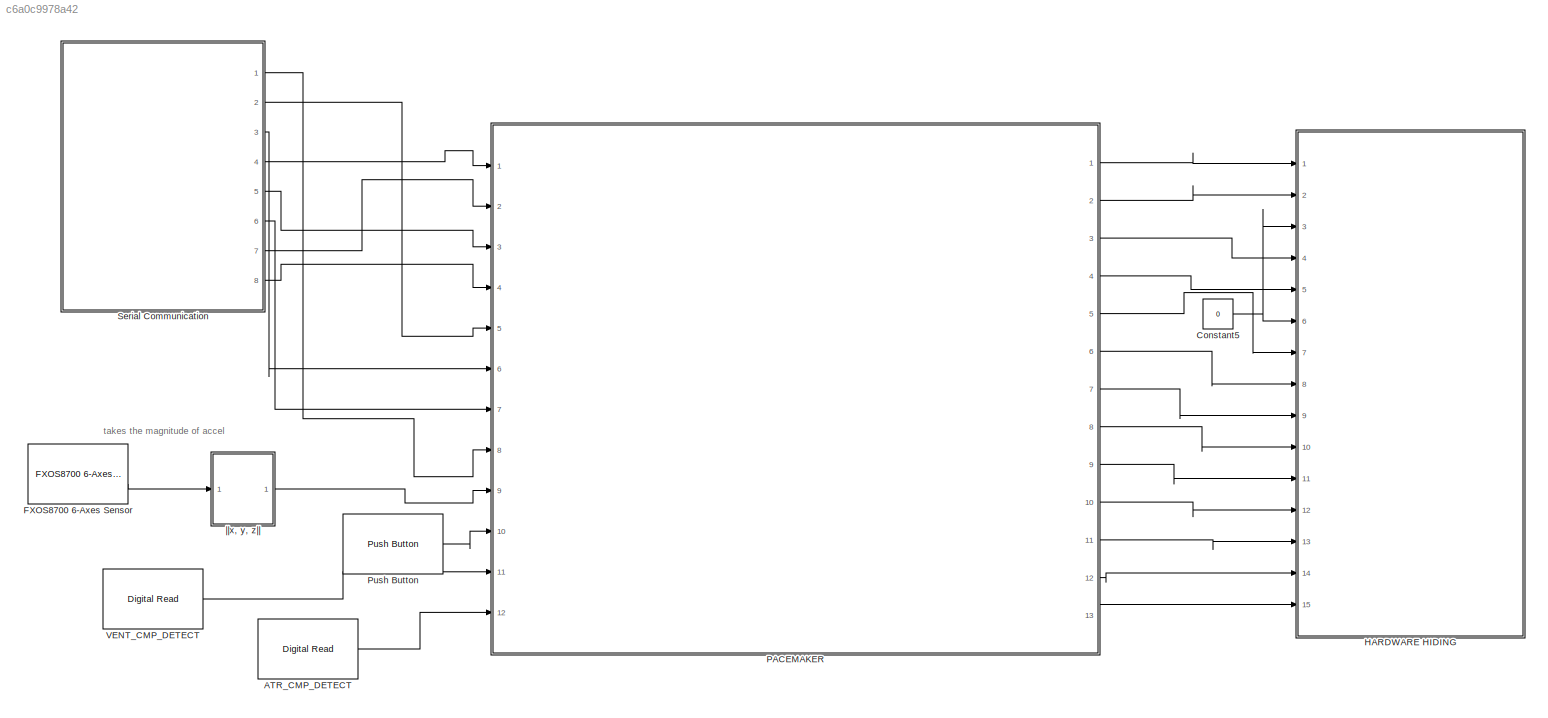
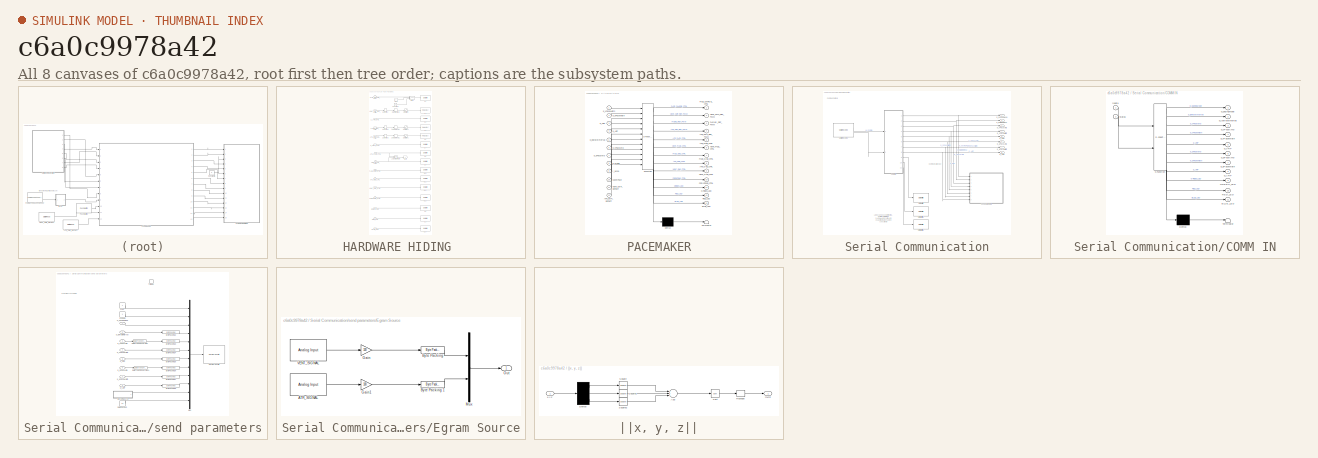
[diagram: thumbnail index - all 8 canvases of the model, root first then tree order]
MODEL slx_c6a0c9978a42
KIND model
CONFIG AbsTol = auto
CONFIG EnableMultiTasking = on
CONFIG FixedStep = 1e-3
CONFIG MaxStep = auto
CONFIG MinStep = auto
CONFIG RelTol = 1e-3
CONFIG SampleTimeConstraint = Unconstrained
CONFIG Solver = FixedStepAuto
CONFIG SolverName = FixedStepAuto
CONFIG StartTime = 0.0
CONFIG StopTime = 10.0
BLOCK [Reference] ATR_CMP_DETECT  REF=frdmk64flib/Digital Read
  Ports = [0, 1]
  SourceBlock = frdmk64flib/Digital Read
  SourceProductBaseCode = EC_FRDM_K64F
  SourceProductName = Simulink Coder Support Package for NXP FRDM-K64F Board
  SourceType = freedomk64f.DigitalRead
BLOCK [Constant] Constant5
  OutDataTypeStr = boolean
  Value = 0
BLOCK [Reference] FXOS8700 6-Axes Sensor  REF=frdmk64flib/FXOS8700 6-Axes Sensor
  Ports = [0, 2]
  SourceBlock = frdmk64flib/FXOS8700 6-Axes Sensor
  SourceProductBaseCode = EC_FRDM_K64F
  SourceProductName = Simulink Coder Support Package for NXP FRDM-K64F Board
  SourceType = freedomk64f.fxos8700
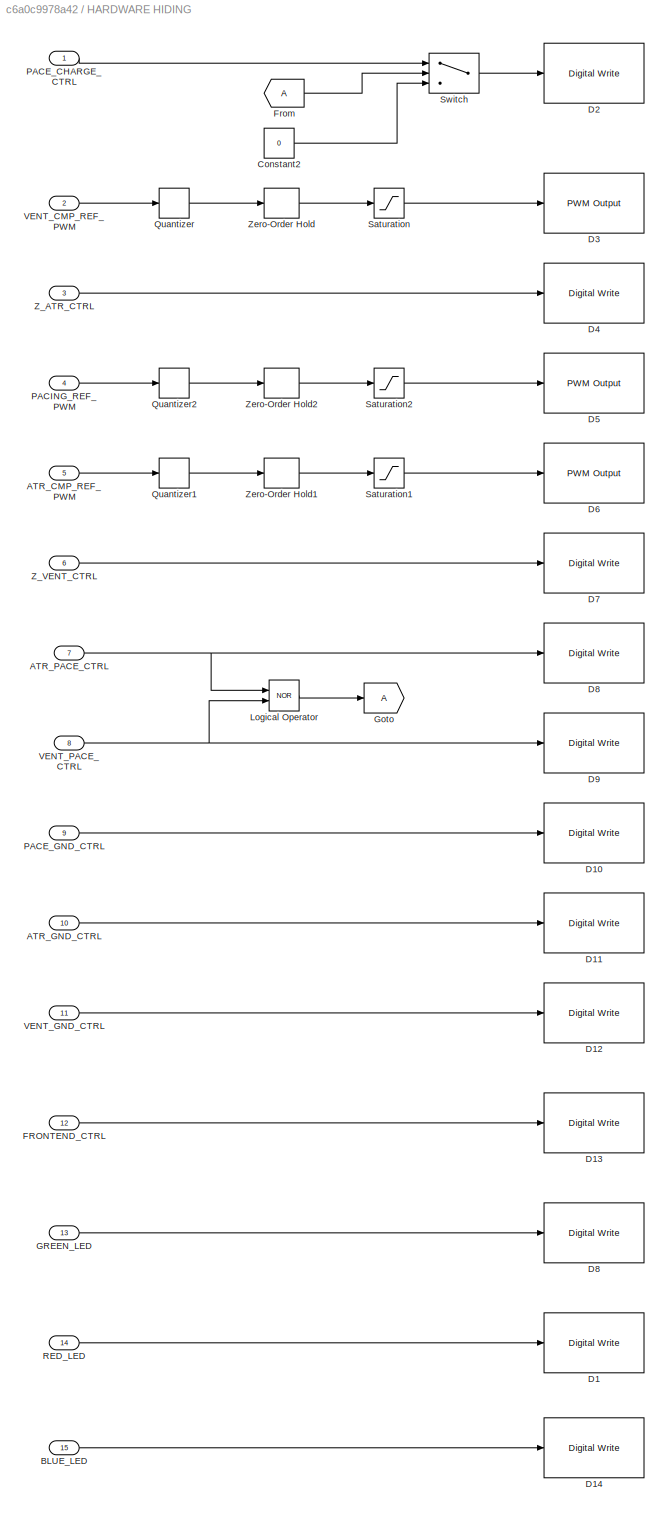
BLOCK [SubSystem] HARDWARE HIDING 
  Ports = [15]
  RequestExecContextInheritance = off
BLOCK [Inport] HARDWARE HIDING /ATR_CMP_REF_PWM
  IconDisplay = Port number
  OutDataTypeStr = double
  Port = 5
BLOCK [Inport] HARDWARE HIDING /ATR_GND_CTRL
  IconDisplay = Port number
  OutDataTypeStr = boolean
  Port = 10
BLOCK [Inport] HARDWARE HIDING /ATR_PACE_CTRL
  IconDisplay = Port number
  OutDataTypeStr = boolean
  Port = 7
BLOCK [Inport] HARDWARE HIDING /BLUE_LED
  IconDisplay = Port number
  OutDataTypeStr = boolean
  Port = 15
BLOCK [Constant] HARDWARE HIDING /Constant2
  OutDataTypeStr = boolean
  Value = 0
BLOCK [Reference] HARDWARE HIDING /D1  REF=frdmk64flib/Digital Write
  Ports = [1]
  SourceBlock = frdmk64flib/Digital Write
  SourceProductBaseCode = EC_FRDM_K64F
  SourceProductName = Simulink Coder Support Package for NXP FRDM-K64F Board
  SourceType = freedomk64f.DigitalWrite
BLOCK [Reference] HARDWARE HIDING /D10  REF=frdmk64flib/Digital Write
  Ports = [1]
  SourceBlock = frdmk64flib/Digital Write
  SourceProductBaseCode = EC_FRDM_K64F
  SourceProductName = Simulink Coder Support Package for NXP FRDM-K64F Board
  SourceType = freedomk64f.DigitalWrite
BLOCK [Reference] HARDWARE HIDING /D11  REF=frdmk64flib/Digital Write
  Ports = [1]
  SourceBlock = frdmk64flib/Digital Write
  SourceProductBaseCode = EC_FRDM_K64F
  SourceProductName = Simulink Coder Support Package for NXP FRDM-K64F Board
  SourceType = freedomk64f.DigitalWrite
BLOCK [Reference] HARDWARE HIDING /D12  REF=frdmk64flib/Digital Write
  Ports = [1]
  SourceBlock = frdmk64flib/Digital Write
  SourceProductBaseCode = EC_FRDM_K64F
  SourceProductName = Simulink Coder Support Package for NXP FRDM-K64F Board
  SourceType = freedomk64f.DigitalWrite
BLOCK [Reference] HARDWARE HIDING /D13  REF=frdmk64flib/Digital Write
  Ports = [1]
  SourceBlock = frdmk64flib/Digital Write
  SourceProductBaseCode = EC_FRDM_K64F
  SourceProductName = Simulink Coder Support Package for NXP FRDM-K64F Board
  SourceType = freedomk64f.DigitalWrite
BLOCK [Reference] HARDWARE HIDING /D14  REF=frdmk64flib/Digital Write
  Ports = [1]
  SourceBlock = frdmk64flib/Digital Write
  SourceProductBaseCode = EC_FRDM_K64F
  SourceProductName = Simulink Coder Support Package for NXP FRDM-K64F Board
  SourceType = freedomk64f.DigitalWrite
BLOCK [Reference] HARDWARE HIDING /D2  REF=frdmk64flib/Digital Write
  Ports = [1]
  SourceBlock = frdmk64flib/Digital Write
  SourceProductBaseCode = EC_FRDM_K64F
  SourceProductName = Simulink Coder Support Package for NXP FRDM-K64F Board
  SourceType = freedomk64f.DigitalWrite
BLOCK [Reference] HARDWARE HIDING /D3  REF=frdmk64flib/PWM Output
  Ports = [1]
  SourceBlock = frdmk64flib/PWM Output
  SourceProductBaseCode = EC_FRDM_K64F
  SourceProductName = Simulink Coder Support Package for NXP FRDM-K64F Board
  SourceType = freedomk64f.PWMOutput
BLOCK [Reference] HARDWARE HIDING /D4  REF=frdmk64flib/Digital Write
  Ports = [1]
  SourceBlock = frdmk64flib/Digital Write
  SourceProductBaseCode = EC_FRDM_K64F
  SourceProductName = Simulink Coder Support Package for NXP FRDM-K64F Board
  SourceType = freedomk64f.DigitalWrite
BLOCK [Reference] HARDWARE HIDING /D5  REF=frdmk64flib/PWM Output
  Ports = [1]
  SourceBlock = frdmk64flib/PWM Output
  SourceProductBaseCode = EC_FRDM_K64F
  SourceProductName = Simulink Coder Support Package for NXP FRDM-K64F Board
  SourceType = freedomk64f.PWMOutput
BLOCK [Reference] HARDWARE HIDING /D6  REF=frdmk64flib/PWM Output
  Ports = [1]
  SourceBlock = frdmk64flib/PWM Output
  SourceProductBaseCode = EC_FRDM_K64F
  SourceProductName = Simulink Coder Support Package for NXP FRDM-K64F Board
  SourceType = freedomk64f.PWMOutput
BLOCK [Reference] HARDWARE HIDING /D7  REF=frdmk64flib/Digital Write
  Ports = [1]
  SourceBlock = frdmk64flib/Digital Write
  SourceProductBaseCode = EC_FRDM_K64F
  SourceProductName = Simulink Coder Support Package for NXP FRDM-K64F Board
  SourceType = freedomk64f.DigitalWrite
BLOCK [Reference] HARDWARE HIDING /D8  REF=frdmk64flib/Digital Write
  Ports = [1]
  SourceBlock = frdmk64flib/Digital Write
  SourceProductBaseCode = EC_FRDM_K64F
  SourceProductName = Simulink Coder Support Package for NXP FRDM-K64F Board
  SourceType = freedomk64f.DigitalWrite
BLOCK [Reference] HARDWARE HIDING /D8   REF=frdmk64flib/Digital Write
  Ports = [1]
  SourceBlock = frdmk64flib/Digital Write
  SourceProductBaseCode = EC_FRDM_K64F
  SourceProductName = Simulink Coder Support Package for NXP FRDM-K64F Board
  SourceType = freedomk64f.DigitalWrite
BLOCK [Reference] HARDWARE HIDING /D9  REF=frdmk64flib/Digital Write
  Ports = [1]
  SourceBlock = frdmk64flib/Digital Write
  SourceProductBaseCode = EC_FRDM_K64F
  SourceProductName = Simulink Coder Support Package for NXP FRDM-K64F Board
  SourceType = freedomk64f.DigitalWrite
BLOCK [Inport] HARDWARE HIDING /FRONTEND_CTRL
  IconDisplay = Port number
  OutDataTypeStr = boolean
  Port = 12
BLOCK [From] HARDWARE HIDING /From
BLOCK [Inport] HARDWARE HIDING /GREEN_LED
  IconDisplay = Port number
  OutDataTypeStr = boolean
  Port = 13
BLOCK [Goto] HARDWARE HIDING /Goto
BLOCK [Logic] HARDWARE HIDING /Logical Operator
  AllPortsSameDT = off
  Operator = NOR
  OutDataTypeStr = boolean
  Ports = [2, 1]
BLOCK [Inport] HARDWARE HIDING /PACE_CHARGE_CTRL
  IconDisplay = Port number
  OutDataTypeStr = boolean
BLOCK [Inport] HARDWARE HIDING /PACE_GND_CTRL
  IconDisplay = Port number
  OutDataTypeStr = boolean
  Port = 9
BLOCK [Inport] HARDWARE HIDING /PACING_REF_PWM
  IconDisplay = Port number
  OutDataTypeStr = double
  Port = 4
BLOCK [Quantizer] HARDWARE HIDING /Quantizer
  QuantizationInterval = 0.01
BLOCK [Quantizer] HARDWARE HIDING /Quantizer1
  QuantizationInterval = 0.01
BLOCK [Quantizer] HARDWARE HIDING /Quantizer2
  QuantizationInterval = 0.01
BLOCK [Inport] HARDWARE HIDING /RED_LED
  IconDisplay = Port number
  OutDataTypeStr = boolean
  Port = 14
BLOCK [Saturate] HARDWARE HIDING /Saturation
  InputPortMap = u0
  LowerLimit = 0
  Ports = [1, 1]
  UpperLimit = 100
BLOCK [Saturate] HARDWARE HIDING /Saturation1
  InputPortMap = u0
  LowerLimit = 0
  Ports = [1, 1]
  UpperLimit = 100
BLOCK [Saturate] HARDWARE HIDING /Saturation2
  InputPortMap = u0
  LowerLimit = 0
  Ports = [1, 1]
  UpperLimit = 100
BLOCK [Switch] HARDWARE HIDING /Switch
  Criteria = u2 > Threshold
  InputSameDT = off
  SaturateOnIntegerOverflow = off
BLOCK [Inport] HARDWARE HIDING /VENT_CMP_REF_PWM
  IconDisplay = Port number
  OutDataTypeStr = double
  Port = 2
BLOCK [Inport] HARDWARE HIDING /VENT_GND_CTRL
  IconDisplay = Port number
  OutDataTypeStr = boolean
  Port = 11
BLOCK [Inport] HARDWARE HIDING /VENT_PACE_CTRL
  IconDisplay = Port number
  OutDataTypeStr = boolean
  Port = 8
BLOCK [Inport] HARDWARE HIDING /Z_ATR_CTRL
  IconDisplay = Port number
  OutDataTypeStr = boolean
  Port = 3
BLOCK [Inport] HARDWARE HIDING /Z_VENT_CTRL
  IconDisplay = Port number
  OutDataTypeStr = boolean
  Port = 6
BLOCK [ZeroOrderHold] HARDWARE HIDING /Zero-Order Hold
  SampleTime = 0.01
BLOCK [ZeroOrderHold] HARDWARE HIDING /Zero-Order Hold1
  SampleTime = 0.01
BLOCK [ZeroOrderHold] HARDWARE HIDING /Zero-Order Hold2
  SampleTime = 0.01
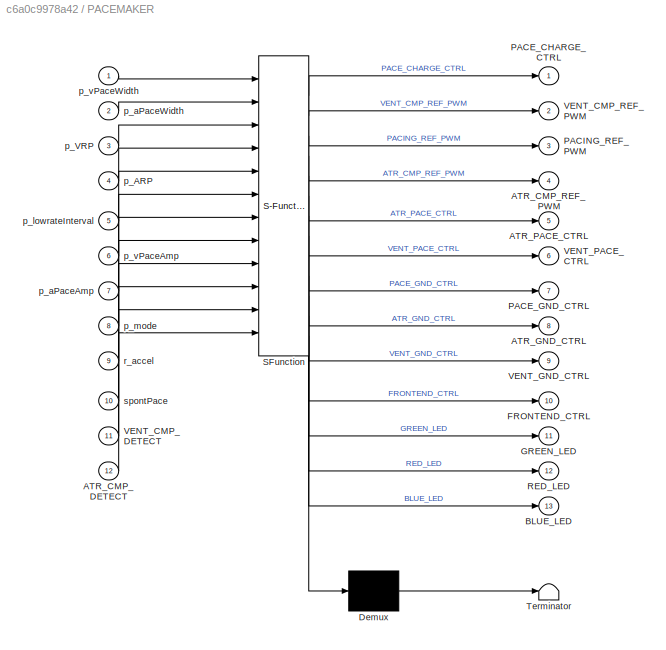
BLOCK [SubSystem] PACEMAKER
  ErrorFcn = Stateflow.Translate.translate
  PermitHierarchicalResolution = ExplicitOnly
  Ports = [12, 13]
  RequestExecContextInheritance = off
  SFBlockType = Chart
  TreatAsAtomicUnit = on
BLOCK [Demux] PACEMAKER/ Demux 
  Outputs = 1
  Ports = [1, 1]
BLOCK [S-Function] PACEMAKER/ SFunction 
  EnableBusSupport = on
  FunctionName = sf_sfun
  PortCounts = [12 14]
  Ports = [12, 14]
  SFcnIsStateOwnerBlock = off
  SFunctionDeploymentMode = off
  Tag = Stateflow S-Function part1_WORKS 3
BLOCK [Terminator] PACEMAKER/ Terminator 
BLOCK [Inport] PACEMAKER/ATR_CMP_DETECT
  IconDisplay = Port number
  Port = 12
BLOCK [Outport] PACEMAKER/ATR_CMP_REF_PWM
  IconDisplay = Port number
  Port = 4
BLOCK [Outport] PACEMAKER/ATR_GND_CTRL
  IconDisplay = Port number
  Port = 8
BLOCK [Outport] PACEMAKER/ATR_PACE_CTRL
  IconDisplay = Port number
  Port = 5
BLOCK [Outport] PACEMAKER/BLUE_LED
  IconDisplay = Port number
  Port = 13
BLOCK [Outport] PACEMAKER/FRONTEND_CTRL
  IconDisplay = Port number
  Port = 10
BLOCK [Outport] PACEMAKER/GREEN_LED
  IconDisplay = Port number
  Port = 11
BLOCK [Outport] PACEMAKER/PACE_CHARGE_CTRL
  IconDisplay = Port number
BLOCK [Outport] PACEMAKER/PACE_GND_CTRL
  IconDisplay = Port number
  Port = 7
BLOCK [Outport] PACEMAKER/PACING_REF_PWM
  IconDisplay = Port number
  Port = 3
BLOCK [Outport] PACEMAKER/RED_LED
  IconDisplay = Port number
  Port = 12
BLOCK [Inport] PACEMAKER/VENT_CMP_DETECT
  IconDisplay = Port number
  Port = 11
BLOCK [Outport] PACEMAKER/VENT_CMP_REF_PWM
  IconDisplay = Port number
  Port = 2
BLOCK [Outport] PACEMAKER/VENT_GND_CTRL
  IconDisplay = Port number
  Port = 9
BLOCK [Outport] PACEMAKER/VENT_PACE_CTRL
  IconDisplay = Port number
  Port = 6
BLOCK [Inport] PACEMAKER/p_ARP
  IconDisplay = Port number
  Port = 4
BLOCK [Inport] PACEMAKER/p_VRP
  IconDisplay = Port number
  Port = 3
BLOCK [Inport] PACEMAKER/p_aPaceAmp
  IconDisplay = Port number
  Port = 7
BLOCK [Inport] PACEMAKER/p_aPaceWidth
  IconDisplay = Port number
  Port = 2
BLOCK [Inport] PACEMAKER/p_lowrateInterval
  IconDisplay = Port number
  Port = 5
BLOCK [Inport] PACEMAKER/p_mode
  IconDisplay = Port number
  Port = 8
BLOCK [Inport] PACEMAKER/p_vPaceAmp
  IconDisplay = Port number
  Port = 6
BLOCK [Inport] PACEMAKER/p_vPaceWidth
  IconDisplay = Port number
BLOCK [Inport] PACEMAKER/r_accel
  IconDisplay = Port number
  Port = 9
BLOCK [Inport] PACEMAKER/spontPace
  IconDisplay = Port number
  Port = 10
BLOCK [Reference] Push Button  REF=frdmk64flib/Push Button
  Ports = [0, 1]
  SourceBlock = frdmk64flib/Push Button
  SourceProductBaseCode = EC_FRDM_K64F
  SourceProductName = Simulink Coder Support Package for NXP FRDM-K64F Board
  SourceType = freedomk64f.PushButton
BLOCK [SubSystem] Serial Communication
  Ports = [0, 8]
  RequestExecContextInheritance = off
BLOCK [SubSystem] Serial Communication/COMM IN
  ErrorFcn = Stateflow.Translate.translate
  PermitHierarchicalResolution = ExplicitOnly
  Ports = [2, 11]
  RequestExecContextInheritance = off
  SFBlockType = Chart
  TreatAsAtomicUnit = on
BLOCK [Demux] Serial Communication/COMM IN/ Demux 
  Outputs = 1
  Ports = [1, 1]
BLOCK [S-Function] Serial Communication/COMM IN/ SFunction 
  EnableBusSupport = on
  FunctionName = sf_sfun
  PortCounts = [2 12]
  Ports = [2, 12]
  SFcnIsStateOwnerBlock = off
  SFunctionDeploymentMode = off
  Tag = Stateflow S-Function part1_WORKS 1
BLOCK [Terminator] Serial Communication/COMM IN/ Terminator 
BLOCK [Outport] Serial Communication/COMM IN/BLUE_LED
  IconDisplay = Port number
  Port = 11
BLOCK [Outport] Serial Communication/COMM IN/GREEN_LED
  IconDisplay = Port number
  Port = 9
BLOCK [Outport] Serial Communication/COMM IN/RED_LED
  IconDisplay = Port number
  Port = 10
BLOCK [Outport] Serial Communication/COMM IN/p_ARP
  IconDisplay = Port number
  Port = 8
BLOCK [Outport] Serial Communication/COMM IN/p_VRP
  IconDisplay = Port number
  Port = 5
BLOCK [Outport] Serial Communication/COMM IN/p_aPaceAmp
  IconDisplay = Port number
  Port = 6
BLOCK [Outport] Serial Communication/COMM IN/p_aPaceWidth
  IconDisplay = Port number
  Port = 7
BLOCK [Outport] Serial Communication/COMM IN/p_lowrateInterval
  IconDisplay = Port number
  Port = 2
BLOCK [Outport] Serial Communication/COMM IN/p_pacingMode
  IconDisplay = Port number
BLOCK [Outport] Serial Communication/COMM IN/p_vPaceAmp
  IconDisplay = Port number
  Port = 3
BLOCK [Outport] Serial Communication/COMM IN/p_vPaceWidth
  IconDisplay = Port number
  Port = 4
BLOCK [Inport] Serial Communication/COMM IN/rxdata
  IconDisplay = Port number
BLOCK [Inport] Serial Communication/COMM IN/status
  IconDisplay = Port number
  Port = 2
BLOCK [Reference] Serial Communication/Digital Write  REF=frdmk64flib/Digital Write
  Commented = on
  Ports = [1]
  SourceBlock = frdmk64flib/Digital Write
  SourceProductBaseCode = EC_FRDM_K64F
  SourceProductName = Simulink Coder Support Package for NXP FRDM-K64F Board
  SourceType = freedomk64f.DigitalWrite
BLOCK [Reference] Serial Communication/Digital Write1  REF=frdmk64flib/Digital Write
  Commented = on
  Ports = [1]
  SourceBlock = frdmk64flib/Digital Write
  SourceProductBaseCode = EC_FRDM_K64F
  SourceProductName = Simulink Coder Support Package for NXP FRDM-K64F Board
  SourceType = freedomk64f.DigitalWrite
BLOCK [Reference] Serial Communication/Digital Write2  REF=frdmk64flib/Digital Write
  Commented = on
  Ports = [1]
  SourceBlock = frdmk64flib/Digital Write
  SourceProductBaseCode = EC_FRDM_K64F
  SourceProductName = Simulink Coder Support Package for NXP FRDM-K64F Board
  SourceType = freedomk64f.DigitalWrite
BLOCK [Reference] Serial Communication/Serial Receive  REF=frdmk64flib/Serial Receive
  Ports = [0, 2]
  SourceBlock = frdmk64flib/Serial Receive
  SourceProductBaseCode = EC_FRDM_K64F
  SourceProductName = Simulink Coder Support Package for NXP FRDM-K64F Board
  SourceType = freedomk64f.SCIRead
BLOCK [Outport] Serial Communication/p_ARP
  IconDisplay = Port number
  Port = 8
BLOCK [Outport] Serial Communication/p_VRP
  IconDisplay = Port number
  Port = 5
BLOCK [Outport] Serial Communication/p_aPaceAmp
  IconDisplay = Port number
  Port = 6
BLOCK [Outport] Serial Communication/p_aPaceWidth
  IconDisplay = Port number
  Port = 7
BLOCK [Outport] Serial Communication/p_lowrateInterval
  IconDisplay = Port number
  Port = 2
BLOCK [Outport] Serial Communication/p_pacingMode
  IconDisplay = Port number
BLOCK [Outport] Serial Communication/p_vPaceAmp
  IconDisplay = Port number
  Port = 3
BLOCK [Outport] Serial Communication/p_vPaceWidth
  IconDisplay = Port number
  Port = 4
BLOCK [SubSystem] Serial Communication/send parameters
  Ports = [8, 0, 0, 1]
  RequestExecContextInheritance = off
BLOCK [Reference] Serial Communication/send parameters/Byte Packing 2  REF=xpcutilitieslib/Byte Packing 
  Ports = [1, 1]
  SourceBlock = xpcutilitieslib/Byte Packing
  SourceProductBaseCode = XP
  SourceProductName = Simulink Real-Time
  SourceType = xpcbytepacking
BLOCK [Reference] Serial Communication/send parameters/Byte Packing 3  REF=xpcutilitieslib/Byte Packing 
  Ports = [1, 1]
  SourceBlock = xpcutilitieslib/Byte Packing
  SourceProductBaseCode = XP
  SourceProductName = Simulink Real-Time
  SourceType = xpcbytepacking
BLOCK [Reference] Serial Communication/send parameters/Byte Packing 4  REF=xpcutilitieslib/Byte Packing 
  Ports = [1, 1]
  SourceBlock = xpcutilitieslib/Byte Packing
  SourceProductBaseCode = XP
  SourceProductName = Simulink Real-Time
  SourceType = xpcbytepacking
BLOCK [Reference] Serial Communication/send parameters/Byte Packing 5  REF=xpcutilitieslib/Byte Packing 
  Ports = [1, 1]
  SourceBlock = xpcutilitieslib/Byte Packing
  SourceProductBaseCode = XP
  SourceProductName = Simulink Real-Time
  SourceType = xpcbytepacking
BLOCK [Reference] Serial Communication/send parameters/Byte Packing 6  REF=xpcutilitieslib/Byte Packing 
  Ports = [1, 1]
  SourceBlock = xpcutilitieslib/Byte Packing
  SourceProductBaseCode = XP
  SourceProductName = Simulink Real-Time
  SourceType = xpcbytepacking
BLOCK [Reference] Serial Communication/send parameters/Byte Packing 7  REF=xpcutilitieslib/Byte Packing 
  Ports = [1, 1]
  SourceBlock = xpcutilitieslib/Byte Packing
  SourceProductBaseCode = XP
  SourceProductName = Simulink Real-Time
  SourceType = xpcbytepacking
BLOCK [Reference] Serial Communication/send parameters/Byte Packing 8  REF=xpcutilitieslib/Byte Packing 
  Ports = [1, 1]
  SourceBlock = xpcutilitieslib/Byte Packing
  SourceProductBaseCode = XP
  SourceProductName = Simulink Real-Time
  SourceType = xpcbytepacking
BLOCK [Constant] Serial Communication/send parameters/Data ChkSum
  OutDataTypeStr = uint8
  Value = 22
BLOCK [DataTypeConversion] Serial Communication/send parameters/Data Type Conversion
  OutDataTypeStr = uint16
  RndMeth = Floor
  SaturateOnIntegerOverflow = off
BLOCK [DataTypeConversion] Serial Communication/send parameters/Data Type Conversion1
  OutDataTypeStr = uint16
  RndMeth = Floor
  SaturateOnIntegerOverflow = off
BLOCK [SubSystem] Serial Communication/send parameters/Egram Source
  Ports = [0, 1]
  RequestExecContextInheritance = off
BLOCK [Reference] Serial Communication/send parameters/Egram Source/ATR_SIGNAL  REF=frdmk64flib/Analog Input
  Ports = [0, 1]
  SourceBlock = frdmk64flib/Analog Input
  SourceProductBaseCode = EC_FRDM_K64F
  SourceProductName = Simulink Coder Support Package for NXP FRDM-K64F Board
  SourceType = freedomk64f.AnalogInput
BLOCK [Reference] Serial Communication/send parameters/Egram Source/Byte Packing   REF=xpcutilitieslib/Byte Packing 
  Ports = [1, 1]
  SourceBlock = xpcutilitieslib/Byte Packing
  SourceProductBaseCode = XP
  SourceProductName = Simulink Real-Time
  SourceType = xpcbytepacking
BLOCK [Reference] Serial Communication/send parameters/Egram Source/Byte Packing 1  REF=xpcutilitieslib/Byte Packing 
  Ports = [1, 1]
  SourceBlock = xpcutilitieslib/Byte Packing
  SourceProductBaseCode = XP
  SourceProductName = Simulink Real-Time
  SourceType = xpcbytepacking
BLOCK [Gain] Serial Communication/send parameters/Egram Source/Gain
  Gain = 100
  OutDataTypeStr = int16
  ParamDataTypeStr = Inherit: Inherit via internal rule
  SaturateOnIntegerOverflow = off
BLOCK [Gain] Serial Communication/send parameters/Egram Source/Gain1
  Gain = 100
  OutDataTypeStr = int16
  ParamDataTypeStr = Inherit: Inherit via internal rule
  RndMeth = Round
  SaturateOnIntegerOverflow = off
BLOCK [Mux] Serial Communication/send parameters/Egram Source/Mux
  DisplayOption = bar
  Inputs = 2
  Ports = [2, 1]
BLOCK [Outport] Serial Communication/send parameters/Egram Source/Out
  IconDisplay = Port number
BLOCK [Reference] Serial Communication/send parameters/Egram Source/VENT_SIGNAL  REF=frdmk64flib/Analog Input
  Ports = [0, 1]
  SourceBlock = frdmk64flib/Analog Input
  SourceProductBaseCode = EC_FRDM_K64F
  SourceProductName = Simulink Coder Support Package for NXP FRDM-K64F Board
  SourceType = freedomk64f.AnalogInput
BLOCK [Constant] Serial Communication/send parameters/FnCode
  OutDataTypeStr = uint8
BLOCK [Mux] Serial Communication/send parameters/Mux
  DisplayOption = bar
  Inputs = 12
  Ports = [12, 1]
BLOCK [Constant] Serial Communication/send parameters/SYNC
  OutDataTypeStr = uint8
BLOCK [Reference] Serial Communication/send parameters/Serial Transmit  REF=frdmk64flib/Serial Transmit
  Ports = [1]
  SourceBlock = frdmk64flib/Serial Transmit
  SourceProductBaseCode = EC_FRDM_K64F
  SourceProductName = Simulink Coder Support Package for NXP FRDM-K64F Board
  SourceType = freedomk64f.SCIWrite
BLOCK [TriggerPort] Serial Communication/send parameters/Trigger
  FunctionName = send_data
  GeneratePreprocessorConditionals = on
  IsSimulinkFunction = on
  PortDimensions = 1
  Ports = []
  StatesWhenEnabling = held
  TriggerType = function-call
  VariantControl = Variant
BLOCK [Inport] Serial Communication/send parameters/p_ARP
  IconDisplay = Port number
  Port = 8
BLOCK [Inport] Serial Communication/send parameters/p_VRP
  IconDisplay = Port number
  Port = 5
BLOCK [Inport] Serial Communication/send parameters/p_aPaceAmp
  IconDisplay = Port number
  Port = 6
BLOCK [Inport] Serial Communication/send parameters/p_aPaceWidth
  IconDisplay = Port number
  Port = 7
BLOCK [Inport] Serial Communication/send parameters/p_lowrateInterval
  IconDisplay = Port number
  Port = 2
BLOCK [Inport] Serial Communication/send parameters/p_pacingMode
  IconDisplay = Port number
BLOCK [Inport] Serial Communication/send parameters/p_vPaceAmp
  IconDisplay = Port number
  Port = 3
BLOCK [Inport] Serial Communication/send parameters/p_vPaceWidth
  IconDisplay = Port number
  Port = 4
BLOCK [Reference] VENT_CMP_DETECT  REF=frdmk64flib/Digital Read
  Ports = [0, 1]
  SourceBlock = frdmk64flib/Digital Read
  SourceProductBaseCode = EC_FRDM_K64F
  SourceProductName = Simulink Coder Support Package for NXP FRDM-K64F Board
  SourceType = freedomk64f.DigitalRead
BLOCK [SubSystem] ||x, y, z||
  Ports = [1, 1]
  RequestExecContextInheritance = off
BLOCK [Sum] ||x, y, z||/Add
  InputSameDT = off
  Inputs = +++
  OutDataTypeStr = Inherit: Inherit via internal rule
  Ports = [3, 1]
  SaturateOnIntegerOverflow = off
BLOCK [Demux] ||x, y, z||/Demux
  Outputs = 3
  Ports = [1, 3]
BLOCK [Reshape] ||x, y, z||/Reshape
  OutputDimensions = [1]
  Ports = [1, 1]
BLOCK [Sqrt] ||x, y, z||/Sqrt
BLOCK [Math] ||x, y, z||/Square
  Operator = square
  Ports = [1, 1]
BLOCK [Math] ||x, y, z||/Square1
  Operator = square
  Ports = [1, 1]
BLOCK [Math] ||x, y, z||/Square2
  Operator = square
  Ports = [1, 1]
BLOCK [Outport] ||x, y, z||/mvmt
  IconDisplay = Port number
BLOCK [Inport] ||x, y, z||/x,y,z
  IconDisplay = Port number
ANNOTATION (root): takes the magnitude of accel
ANNOTATION Serial Communication: Communication In
ANNOTATION Serial Communication: Communication Out
ANNOTATION Serial Communication: LEDs can be used for testing, but will conflict with the PACEMAKER chart's LED usage if both are enabled concurrently
ANNOTATION Serial Communication/send parameters: PARAM DATA PACKING
LINE ATR_CMP_DETECT:1 -> PACEMAKER:12
NET Constant5:1 -> HARDWARE HIDING :3, HARDWARE HIDING :6
LINE FXOS8700 6-Axes Sensor:2 -> ||x, y, z||:1
LINE HARDWARE HIDING /ATR_CMP_REF_PWM:1 -> HARDWARE HIDING /Quantizer1:1
LINE HARDWARE HIDING /ATR_GND_CTRL:1 -> HARDWARE HIDING /D11:1
NET HARDWARE HIDING /ATR_PACE_CTRL:1 -> HARDWARE HIDING /D8 :1, HARDWARE HIDING /Logical Operator:1
LINE HARDWARE HIDING /BLUE_LED:1 -> HARDWARE HIDING /D14:1
LINE HARDWARE HIDING /Constant2:1 -> HARDWARE HIDING /Switch:3
LINE HARDWARE HIDING /FRONTEND_CTRL:1 -> HARDWARE HIDING /D13:1
LINE HARDWARE HIDING /From:1 -> HARDWARE HIDING /Switch:2
LINE HARDWARE HIDING /GREEN_LED:1 -> HARDWARE HIDING /D8:1
LINE HARDWARE HIDING /Logical Operator:1 -> HARDWARE HIDING /Goto:1
LINE HARDWARE HIDING /PACE_CHARGE_CTRL:1 -> HARDWARE HIDING /Switch:1
LINE HARDWARE HIDING /PACE_GND_CTRL:1 -> HARDWARE HIDING /D10:1
LINE HARDWARE HIDING /PACING_REF_PWM:1 -> HARDWARE HIDING /Quantizer2:1
LINE HARDWARE HIDING /Quantizer1:1 -> HARDWARE HIDING /Zero-Order Hold1:1
LINE HARDWARE HIDING /Quantizer2:1 -> HARDWARE HIDING /Zero-Order Hold2:1
LINE HARDWARE HIDING /Quantizer:1 -> HARDWARE HIDING /Zero-Order Hold:1
LINE HARDWARE HIDING /RED_LED:1 -> HARDWARE HIDING /D1:1
LINE HARDWARE HIDING /Saturation1:1 -> HARDWARE HIDING /D6:1
LINE HARDWARE HIDING /Saturation2:1 -> HARDWARE HIDING /D5:1
LINE HARDWARE HIDING /Saturation:1 -> HARDWARE HIDING /D3:1
LINE HARDWARE HIDING /Switch:1 -> HARDWARE HIDING /D2:1
LINE HARDWARE HIDING /VENT_CMP_REF_PWM:1 -> HARDWARE HIDING /Quantizer:1
LINE HARDWARE HIDING /VENT_GND_CTRL:1 -> HARDWARE HIDING /D12:1
NET HARDWARE HIDING /VENT_PACE_CTRL:1 -> HARDWARE HIDING /D9:1, HARDWARE HIDING /Logical Operator:2
LINE HARDWARE HIDING /Z_ATR_CTRL:1 -> HARDWARE HIDING /D4:1
LINE HARDWARE HIDING /Z_VENT_CTRL:1 -> HARDWARE HIDING /D7:1
LINE HARDWARE HIDING /Zero-Order Hold1:1 -> HARDWARE HIDING /Saturation1:1
LINE HARDWARE HIDING /Zero-Order Hold2:1 -> HARDWARE HIDING /Saturation2:1
LINE HARDWARE HIDING /Zero-Order Hold:1 -> HARDWARE HIDING /Saturation:1
LINE PACEMAKER:1 -> HARDWARE HIDING :1
LINE PACEMAKER:10 -> HARDWARE HIDING :12
LINE PACEMAKER:11 -> HARDWARE HIDING :13
LINE PACEMAKER:12 -> HARDWARE HIDING :14
LINE PACEMAKER:13 -> HARDWARE HIDING :15
LINE PACEMAKER:2 -> HARDWARE HIDING :2
LINE PACEMAKER:3 -> HARDWARE HIDING :4
LINE PACEMAKER:4 -> HARDWARE HIDING :5
LINE PACEMAKER:5 -> HARDWARE HIDING :7
LINE PACEMAKER:6 -> HARDWARE HIDING :8
LINE PACEMAKER:7 -> HARDWARE HIDING :9
LINE PACEMAKER:8 -> HARDWARE HIDING :10
LINE PACEMAKER:9 -> HARDWARE HIDING :11
LINE Push Button:1 -> PACEMAKER:10
NET Serial Communication/COMM IN:1 -> Serial Communication/p_pacingMode:1, Serial Communication/send parameters:1
LINE Serial Communication/COMM IN:10 -> Serial Communication/Digital Write1:1
LINE Serial Communication/COMM IN:11 -> Serial Communication/Digital Write2:1
NET Serial Communication/COMM IN:2 -> Serial Communication/p_lowrateInterval:1, Serial Communication/send parameters:2
NET Serial Communication/COMM IN:3 -> Serial Communication/p_vPaceAmp:1, Serial Communication/send parameters:3
NET Serial Communication/COMM IN:4 -> Serial Communication/p_vPaceWidth:1, Serial Communication/send parameters:4
NET Serial Communication/COMM IN:5 -> Serial Communication/p_VRP:1, Serial Communication/send parameters:5
NET Serial Communication/COMM IN:6 -> Serial Communication/p_aPaceAmp:1, Serial Communication/send parameters:6
NET Serial Communication/COMM IN:7 -> Serial Communication/p_aPaceWidth:1, Serial Communication/send parameters:7
NET Serial Communication/COMM IN:8 -> Serial Communication/p_ARP:1, Serial Communication/send parameters:8
LINE Serial Communication/COMM IN:9 -> Serial Communication/Digital Write:1
LINE Serial Communication/Serial Receive:1 -> Serial Communication/COMM IN:1
LINE Serial Communication/Serial Receive:2 -> Serial Communication/COMM IN:2
LINE Serial Communication/send parameters/Byte Packing 2:1 -> Serial Communication/send parameters/Mux:4
LINE Serial Communication/send parameters/Byte Packing 3:1 -> Serial Communication/send parameters/Mux:5
LINE Serial Communication/send parameters/Byte Packing 4:1 -> Serial Communication/send parameters/Mux:6
LINE Serial Communication/send parameters/Byte Packing 5:1 -> Serial Communication/send parameters/Mux:7
LINE Serial Communication/send parameters/Byte Packing 6:1 -> Serial Communication/send parameters/Mux:8
LINE Serial Communication/send parameters/Byte Packing 7:1 -> Serial Communication/send parameters/Mux:9
LINE Serial Communication/send parameters/Byte Packing 8:1 -> Serial Communication/send parameters/Mux:10
LINE Serial Communication/send parameters/Data ChkSum:1 -> Serial Communication/send parameters/Mux:12
LINE Serial Communication/send parameters/Data Type Conversion1:1 -> Serial Communication/send parameters/Byte Packing 6:1
LINE Serial Communication/send parameters/Data Type Conversion:1 -> Serial Communication/send parameters/Byte Packing 3:1
LINE Serial Communication/send parameters/Egram Source/ATR_SIGNAL:1 -> Serial Communication/send parameters/Egram Source/Gain1:1
LINE Serial Communication/send parameters/Egram Source/Byte Packing 1:1 -> Serial Communication/send parameters/Egram Source/Mux:2
LINE Serial Communication/send parameters/Egram Source/Byte Packing :1 -> Serial Communication/send parameters/Egram Source/Mux:1
LINE Serial Communication/send parameters/Egram Source/Gain1:1 -> Serial Communication/send parameters/Egram Source/Byte Packing 1:1
LINE Serial Communication/send parameters/Egram Source/Gain:1 -> Serial Communication/send parameters/Egram Source/Byte Packing :1
LINE Serial Communication/send parameters/Egram Source/Mux:1 -> Serial Communication/send parameters/Egram Source/Out:1
LINE Serial Communication/send parameters/Egram Source/VENT_SIGNAL:1 -> Serial Communication/send parameters/Egram Source/Gain:1
LINE Serial Communication/send parameters/Egram Source:1 -> Serial Communication/send parameters/Mux:11
LINE Serial Communication/send parameters/FnCode:1 -> Serial Communication/send parameters/Mux:2
LINE Serial Communication/send parameters/Mux:1 -> Serial Communication/send parameters/Serial Transmit:1
LINE Serial Communication/send parameters/SYNC:1 -> Serial Communication/send parameters/Mux:1
LINE Serial Communication/send parameters/p_ARP:1 -> Serial Communication/send parameters/Byte Packing 8:1
LINE Serial Communication/send parameters/p_VRP:1 -> Serial Communication/send parameters/Byte Packing 5:1
LINE Serial Communication/send parameters/p_aPaceAmp:1 -> Serial Communication/send parameters/Data Type Conversion1:1
LINE Serial Communication/send parameters/p_aPaceWidth:1 -> Serial Communication/send parameters/Byte Packing 7:1
LINE Serial Communication/send parameters/p_lowrateInterval:1 -> Serial Communication/send parameters/Byte Packing 2:1
LINE Serial Communication/send parameters/p_pacingMode:1 -> Serial Communication/send parameters/Mux:3
LINE Serial Communication/send parameters/p_vPaceAmp:1 -> Serial Communication/send parameters/Data Type Conversion:1
LINE Serial Communication/send parameters/p_vPaceWidth:1 -> Serial Communication/send parameters/Byte Packing 4:1
LINE Serial Communication:1 -> PACEMAKER:8
LINE Serial Communication:2 -> PACEMAKER:5
LINE Serial Communication:3 -> PACEMAKER:6
LINE Serial Communication:4 -> PACEMAKER:1
LINE Serial Communication:5 -> PACEMAKER:3
LINE Serial Communication:6 -> PACEMAKER:7
LINE Serial Communication:7 -> PACEMAKER:2
LINE Serial Communication:8 -> PACEMAKER:4
LINE VENT_CMP_DETECT:1 -> PACEMAKER:11
LINE ||x, y, z||/Add:1 -> ||x, y, z||/Sqrt:1
LINE ||x, y, z||/Demux:1 -> ||x, y, z||/Square:1
LINE ||x, y, z||/Demux:2 -> ||x, y, z||/Square1:1
LINE ||x, y, z||/Demux:3 -> ||x, y, z||/Square2:1
LINE ||x, y, z||/Reshape:1 -> ||x, y, z||/mvmt:1
LINE ||x, y, z||/Sqrt:1 -> ||x, y, z||/Reshape:1
LINE ||x, y, z||/Square1:1 -> ||x, y, z||/Add:2
LINE ||x, y, z||/Square2:1 -> ||x, y, z||/Add:3
LINE ||x, y, z||/Square:1 -> ||x, y, z||/Add:1
LINE ||x, y, z||/x,y,z:1 -> ||x, y, z||/Demux:1
LINE ||x, y, z||:1 -> PACEMAKER:9
note: NET lines group one-source signal fan-out (src -> all destinations, sorted); 1:1 wires keep LINE
CHART Serial
Communication/COMM IN states=8 transitions=8
  STATE_LABEL "PROG_PARAMS\n%sets given vals\nentry:\np_pacingMode(1)=rxdata(3);\np_lowrateInterval(1)=typecast(rxdata(4:5),'uint16');\np_vPaceAmp(1)=cast(typecast(rxdata(6:7),'uint16'),'double');\np_vPaceWidth(1)=typecast(rxdata(8:9),'uint16');\np_VRP(1)=typecast(rxdata(10:11),'uint16');\np_aPaceAmp(1)=cast(typecast(rxdata(12:13),'uint16'),'double');\np_aPaceWidth(1)=typecast(rxdata(14:15),'int16');\np_ARP(1)=typecast(rx...<+76ch>"
  STATE_LABEL 'INITIAL\nentry:\np_pacingMode = uint8(0);\np_lowrateInterval = uint16(1000);\np_vPaceAmp = double(60);\np_vPaceWidth = uint16(100); %needs to be changed\np_VRP = uint16(320);\np_aPaceAmp = double(60);\np_aPaceWidth = uint16(100); %need to be changed\np_ARP = uint16(320);'
  STATE_LABEL 'SYNC == 1'
  STATE_LABEL 'status == 0'
  STATE_LABEL 'Data ChkSum == 22'
  STATE_LABEL 'STANDBY\n%entry:\n%send_data();\nentry: RED_LED=false;\n BLUE_LED=true;\n GREEN_LED=false;\n'
  STATE_LABEL 'ECHO_PARAM\nentry:\nsend_data();\nRED_LED = false;\nGREEN_LED = true;\nBLUE_LED = false;\n'
  STATE_LABEL 'make sure to store info as local value and remove SEND_EGRAM'
CHART PACEMAKER states=165 transitions=187
  STATE_LABEL 'VVIR'
  STATE_LABEL 'PACE'
  STATE_LABEL 'CHARGE_BLOCK\nentry:\nPACE_CHARGE_CTRL=false;\nVENT_PACE_CTRL=true;\nVENT_GND_CTRL=false;\nGREEN_LED = true;\nRED_LED = false;\nl_paced = true;\nl_sense = false;'
  STATE_LABEL 'DISCHARGE_CHARGE\nentry:\nPACING_REF_PWM=p_vPaceAmp;\nPACE_CHARGE_CTRL=true;\nVENT_PACE_CTRL=false;\nVENT_GND_CTRL=true;\nPACE_GND_CTRL=true;\nGREEN_LED = false;\nRED_LED = false;'
  STATE_LABEL 'INIT_LRL\nentry:\nl_lowrateInterval=p_lowrateInterval;\nl_setpoint = l_lowrateInterval;\nVENT_CMP_REF_PWM = 60;\nATR_CMP_REF_PWM = 60;\nFRONTEND_CTRL= true;\nl_paced = false;\n'
  STATE_LABEL 'BLANK\nentry:\nRED_LED=true;\nl_sense=false;\nl_paced=true;\n'
  STATE_LABEL 'INIT_LRL incorporates the local variables required for rate-adaptivity\nand for inhibition'
  STATE_LABEL 'after(l_lowrateInterval-p_vPaceWidth,msec)'
  STATE_LABEL 'after(p_vPaceWidth,msec)'
  STATE_LABEL 'after(l_lowrateInterval,msec)'
  STATE_LABEL '[l_sense==true && VENT_CMP_DETECT==true]'
  STATE_LABEL '[l_sense==true && VENT_CMP_DETECT==true]'
  STATE_LABEL 'SETTER'
  STATE_LABEL 'INC_INT\nentry:\nl_lowrateInterval=l_lowrateInterval+10;'
  STATE_LABEL 'CHECK_SET\n'
  STATE_LABEL 'STAY'
  STATE_LABEL 'DEC_INT\nentry:\nl_lowrateInterval=l_lowrateInterval-10;'
  STATE_LABEL 'after(100,msec)'
  STATE_LABEL '[l_setpoint-10>l_lowrateInterval]'
  STATE_LABEL '[l_setpoint+10>=l_lowrateInterval]'
  STATE_LABEL '[l_setpoint-10<=l_lowrateInterval]'
  STATE_LABEL 'after(100,msec)'
  STATE_LABEL 'after(100,msec)'
  STATE_LABEL '[l_setpoint+10<l_lowrateInterval]'
  STATE_LABEL 'rate adaptivity changes l_lowrateInterval, so the PACE state needs no significant change'
  STATE_LABEL 'COUNTER, TIMER, and SETTER are identical to VOOR'
  STATE_LABEL 'COUNTER'
  STATE_LABEL 'BLANK'
  STATE_LABEL 'ADD_COUNT\nentry:\nl_status=l_status+1;'
  STATE_LABEL '[r_accel>=2]'
  STATE_LABEL 'after(200,msec)'
  STATE_LABEL '<!DOCTYPE HTML PUBLIC "-//W3C//DTD HTML 4.0//EN" "http://www.w3.org/TR/REC-html40/strict.dtd">\n<html><head><meta name="qrichtext" content="1" /><style type="text/css">\np, li { white-space: pre-wrap; }\n</style></head><body style=" font-family:\'Helvetica\'; font-size:12px; font-weight:400; font-style:normal;">\n<p style=" margin-top:0px; margin-bottom:0px; margin-left:0px; margin-right:0px; -qt-block-...<+627ch>'
  STATE_LABEL 'TIMER'
  STATE_LABEL 'PICK_ACTIVITY'
  STATE_LABEL 'REST\nentry:\nl_setpoint=1000;'
  STATE_LABEL 'SPRINT\nentry:\nl_setpoint=330;'
  STATE_LABEL 'F_JOG\nentry:\nl_setpoint=425;'
  STATE_LABEL 'F_WALK\nentry:\nl_setpoint=600;'
  STATE_LABEL 'RESET_TIME\nentry:\nl_status=0;'
  STATE_LABEL 'RUN\nentry:\nl_setpoint=375;'
